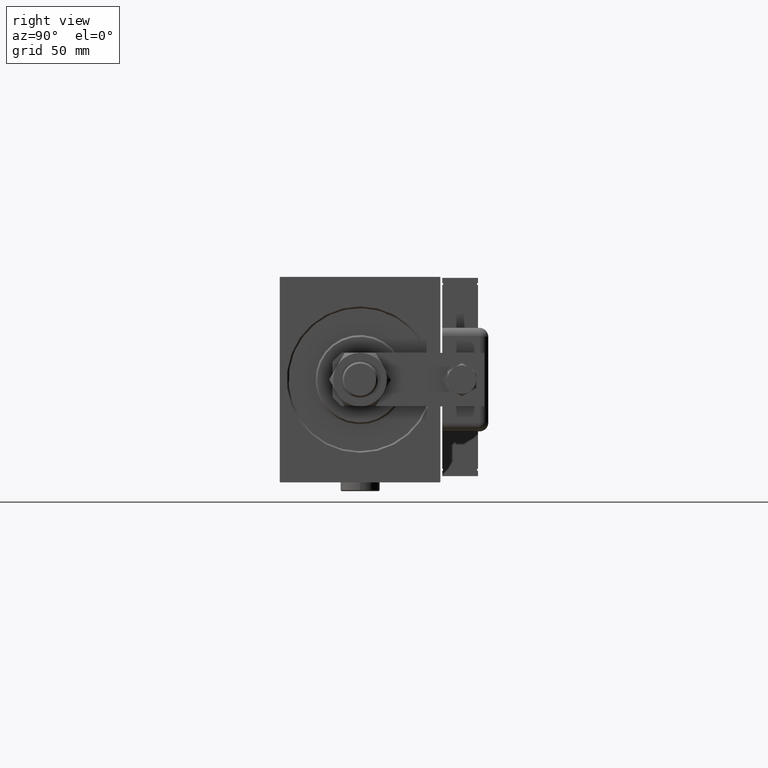
[diagram: clean part render]
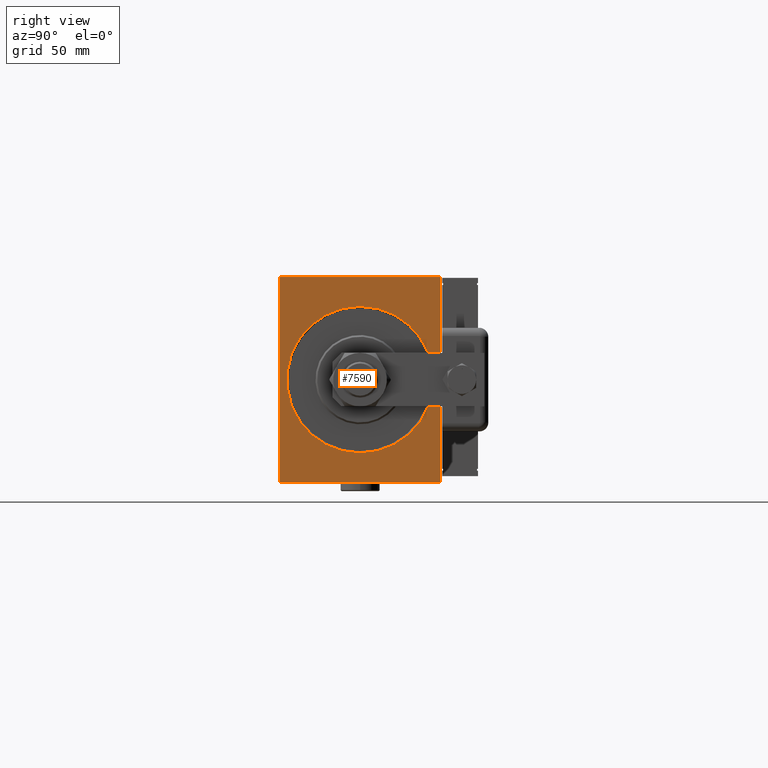
[diagram: same view with one face highlighted and labeled with its STEP entity id]
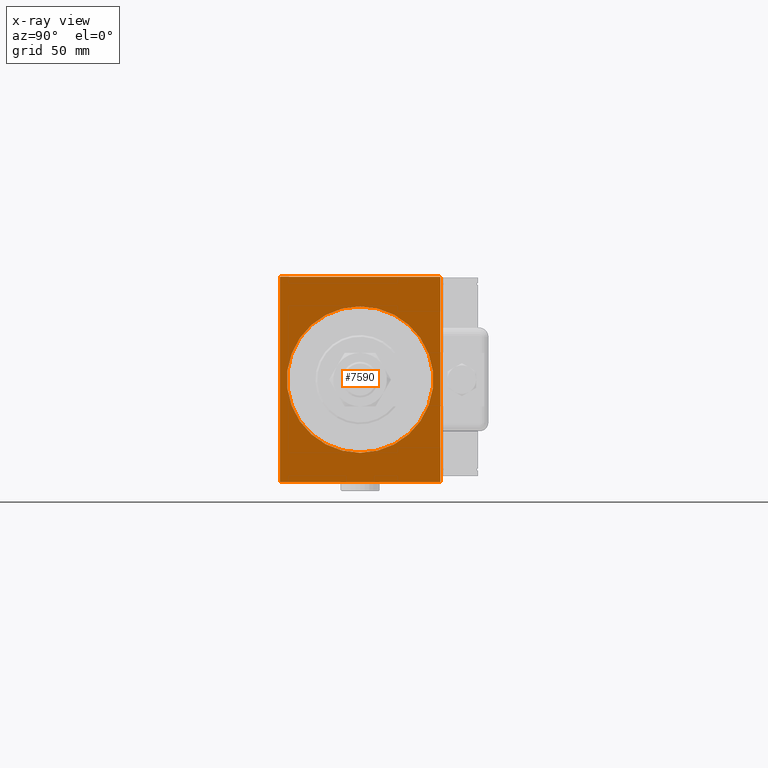
[diagram: x-ray of the same camera — body ghosted, the highlighted face saturated]
A machine part, right view. The second image highlights one B-rep face of the part: STEP entity #7590.
The next image is the same camera in x-ray: the body ghosted, the highlighted face saturated — about 0% of this face is hidden behind the body in this view.
In plain terms, the highlighted planar face has unit normal (-1, -0, 0).
Its self-contained STEP definition (entity closure, byte-faithful):
#583 = DIRECTION ( 'NONE',  ( 0.000000000000000000, -1.000000000000000000, 7.709882115452476934E-17 ) ) ;
#947 = CARTESIAN_POINT ( 'NONE',  ( 0.000000000000000000, -44.69999999999997442, -57.50000000000000711 ) ) ;
#1925 = VECTOR ( 'NONE', #49443, 1000.000000000000000 ) ;
#2128 = DIRECTION ( 'NONE',  ( 1.000000000000000000, 0.000000000000000000, -0.000000000000000000 ) ) ;
#4459 = VERTEX_POINT ( 'NONE', #9957 ) ;
#5557 = DIRECTION ( 'NONE',  ( 0.000000000000000000, 0.000000000000000000, -1.000000000000000000 ) ) ;
#5750 = EDGE_CURVE ( 'NONE', #32286, #11371, #47174, .T. ) ;
#6186 = DIRECTION ( 'NONE',  ( 1.000000000000000000, 0.000000000000000000, -0.000000000000000000 ) ) ;
#6323 = ORIENTED_EDGE ( 'NONE', *, *, #24369, .F. ) ;
#6630 = VERTEX_POINT ( 'NONE', #6671 ) ;
#6671 = CARTESIAN_POINT ( 'NONE',  ( 0.000000000000000000, 45.00000000000000000, 57.20000000000001705 ) ) ;
#7590 = ADVANCED_FACE ( 'NONE', ( #48213, #10813 ), #48524, .F. ) ;
#7888 = DIRECTION ( 'NONE',  ( -0.000000000000000000, -0.7071067811865149322, -0.7071067811865802133 ) ) ;
#8511 = ORIENTED_EDGE ( 'NONE', *, *, #5750, .F. ) ;
#9220 = ORIENTED_EDGE ( 'NONE', *, *, #26202, .T. ) ;
#9550 = LINE ( 'NONE', #19731, #43838 ) ;
#9758 = EDGE_CURVE ( 'NONE', #12531, #6630, #39561, .T. ) ;
#9957 = CARTESIAN_POINT ( 'NONE',  ( 0.000000000000000000, 5.021051876504152118E-15, -41.00000000000003553 ) ) ;
#10216 = EDGE_LOOP ( 'NONE', ( #9220, #57334 ) ) ;
#10813 = FACE_OUTER_BOUND ( 'NONE', #21642, .T. ) ;
#11365 = EDGE_CURVE ( 'NONE', #52061, #50926, #59461, .T. ) ;
#11371 = VERTEX_POINT ( 'NONE', #54820 ) ;
#11624 = CARTESIAN_POINT ( 'NONE',  ( 0.000000000000000000, 44.70000000000003126, 57.50000000000000000 ) ) ;
#12203 = LINE ( 'NONE', #44057, #43441 ) ;
#12531 = VERTEX_POINT ( 'NONE', #44480 ) ;
#12841 = EDGE_CURVE ( 'NONE', #12531, #50926, #17164, .T. ) ;
#15371 = LINE ( 'NONE', #11624, #50661 ) ;
#17164 = LINE ( 'NONE', #35726, #45489 ) ;
#19134 = DIRECTION ( 'NONE',  ( 1.000000000000000000, 0.000000000000000000, -0.000000000000000000 ) ) ;
#19731 = CARTESIAN_POINT ( 'NONE',  ( 0.000000000000000000, 45.00000000000000000, 57.50000000000000000 ) ) ;
#21642 = EDGE_LOOP ( 'NONE', ( #6323, #41177, #35592, #40062, #56151, #35962, #8511, #26115 ) ) ;
#23527 = LINE ( 'NONE', #32491, #36372 ) ;
#24369 = EDGE_CURVE ( 'NONE', #60174, #32822, #9550, .T. ) ;
#24948 = DIRECTION ( 'NONE',  ( -0.000000000000000000, 0.7071067811865556774, -0.7071067811865392461 ) ) ;
#26115 = ORIENTED_EDGE ( 'NONE', *, *, #60583, .T. ) ;
#26202 = EDGE_CURVE ( 'NONE', #43084, #4459, #36966, .T. ) ;
#26995 = DIRECTION ( 'NONE',  ( 0.000000000000000000, 1.000000000000000000, 0.000000000000000000 ) ) ;
#29320 = DIRECTION ( 'NONE',  ( 0.000000000000000000, 0.000000000000000000, -1.000000000000000000 ) ) ;
#31346 = CARTESIAN_POINT ( 'NONE',  ( 0.000000000000000000, -44.69999999999997442, 57.50000000000000711 ) ) ;
#32286 = VERTEX_POINT ( 'NONE', #44097 ) ;
#32491 = CARTESIAN_POINT ( 'NONE',  ( 0.000000000000000000, -44.69999999999997442, -57.50000000000000711 ) ) ;
#32822 = VERTEX_POINT ( 'NONE', #31346 ) ;
#33186 = EDGE_CURVE ( 'NONE', #4459, #43084, #35577, .T. ) ;
#34200 = DIRECTION ( 'NONE',  ( 0.000000000000000000, 0.000000000000000000, -1.000000000000000000 ) ) ;
#34318 = VECTOR ( 'NONE', #34200, 1000.000000000000000 ) ;
#35577 = CIRCLE ( 'NONE', #59273, 41.00000000000003553 ) ;
#35592 = ORIENTED_EDGE ( 'NONE', *, *, #9758, .F. ) ;
#35726 = CARTESIAN_POINT ( 'NONE',  ( 0.000000000000000000, 45.00000000000000000, -57.19999999999998863 ) ) ;
#35962 = ORIENTED_EDGE ( 'NONE', *, *, #56825, .T. ) ;
#36372 = VECTOR ( 'NONE', #38057, 999.9999999999998863 ) ;
#36514 = VECTOR ( 'NONE', #26995, 1000.000000000000000 ) ;
#36966 = CIRCLE ( 'NONE', #48822, 41.00000000000003553 ) ;
#37933 = CARTESIAN_POINT ( 'NONE',  ( 0.000000000000000000, -45.00000000000000000, 57.50000000000000711 ) ) ;
#38057 = DIRECTION ( 'NONE',  ( 0.000000000000000000, -0.7071067811865802133, 0.7071067811865149322 ) ) ;
#39561 = LINE ( 'NONE', #54095, #1925 ) ;
#40062 = ORIENTED_EDGE ( 'NONE', *, *, #12841, .T. ) ;
#41150 = CARTESIAN_POINT ( 'NONE',  ( 0.000000000000000000, 44.69999999999997442, -57.50000000000000711 ) ) ;
#41177 = ORIENTED_EDGE ( 'NONE', *, *, #43891, .T. ) ;
#41607 = CARTESIAN_POINT ( 'NONE',  ( 0.000000000000000000, 0.000000000000000000, 41.00000000000003553 ) ) ;
#43084 = VERTEX_POINT ( 'NONE', #41607 ) ;
#43441 = VECTOR ( 'NONE', #58607, 999.9999999999998863 ) ;
#43838 = VECTOR ( 'NONE', #583, 1000.000000000000000 ) ;
#43884 = DIRECTION ( 'NONE',  ( -0.000000000000000000, 0.000000000000000000, -1.000000000000000000 ) ) ;
#43891 = EDGE_CURVE ( 'NONE', #60174, #6630, #15371, .T. ) ;
#44057 = CARTESIAN_POINT ( 'NONE',  ( 0.000000000000000000, -45.00000000000000000, 57.19999999999998863 ) ) ;
#44097 = CARTESIAN_POINT ( 'NONE',  ( 0.000000000000000000, -45.00000000000000000, 57.19999999999998863 ) ) ;
#44153 = CARTESIAN_POINT ( 'NONE',  ( 0.000000000000000000, 0.000000000000000000, 0.000000000000000000 ) ) ;
#44480 = CARTESIAN_POINT ( 'NONE',  ( 0.000000000000000000, 45.00000000000000000, -57.19999999999998863 ) ) ;
#45223 = AXIS2_PLACEMENT_3D ( 'NONE', #58109, #6186, #43884 ) ;
#45489 = VECTOR ( 'NONE', #7888, 999.9999999999998863 ) ;
#47174 = LINE ( 'NONE', #37933, #34318 ) ;
#47249 = CARTESIAN_POINT ( 'NONE',  ( 0.000000000000000000, 0.000000000000000000, 0.000000000000000000 ) ) ;
#48213 = FACE_BOUND ( 'NONE', #10216, .T. ) ;
#48524 = PLANE ( 'NONE',  #45223 ) ;
#48822 = AXIS2_PLACEMENT_3D ( 'NONE', #44153, #2128, #5557 ) ;
#49443 = DIRECTION ( 'NONE',  ( 0.000000000000000000, 0.000000000000000000, 1.000000000000000000 ) ) ;
#49987 = CARTESIAN_POINT ( 'NONE',  ( 0.000000000000000000, 44.70000000000003126, 57.50000000000000000 ) ) ;
#50470 = CARTESIAN_POINT ( 'NONE',  ( 0.000000000000000000, -45.00000000000000000, -57.50000000000000711 ) ) ;
#50661 = VECTOR ( 'NONE', #24948, 1000.000000000000114 ) ;
#50926 = VERTEX_POINT ( 'NONE', #41150 ) ;
#52061 = VERTEX_POINT ( 'NONE', #947 ) ;
#54095 = CARTESIAN_POINT ( 'NONE',  ( 0.000000000000000000, 45.00000000000000000, -57.50000000000000711 ) ) ;
#54820 = CARTESIAN_POINT ( 'NONE',  ( 0.000000000000000000, -45.00000000000000000, -57.19999999999998863 ) ) ;
#56151 = ORIENTED_EDGE ( 'NONE', *, *, #11365, .F. ) ;
#56825 = EDGE_CURVE ( 'NONE', #52061, #11371, #23527, .T. ) ;
#57334 = ORIENTED_EDGE ( 'NONE', *, *, #33186, .T. ) ;
#58109 = CARTESIAN_POINT ( 'NONE',  ( 0.000000000000000000, 0.000000000000000000, 0.000000000000000000 ) ) ;
#58607 = DIRECTION ( 'NONE',  ( -0.000000000000000000, 0.7071067811865149322, 0.7071067811865802133 ) ) ;
#59273 = AXIS2_PLACEMENT_3D ( 'NONE', #47249, #19134, #29320 ) ;
#59461 = LINE ( 'NONE', #50470, #36514 ) ;
#60174 = VERTEX_POINT ( 'NONE', #49987 ) ;
#60583 = EDGE_CURVE ( 'NONE', #32286, #32822, #12203, .T. ) ;